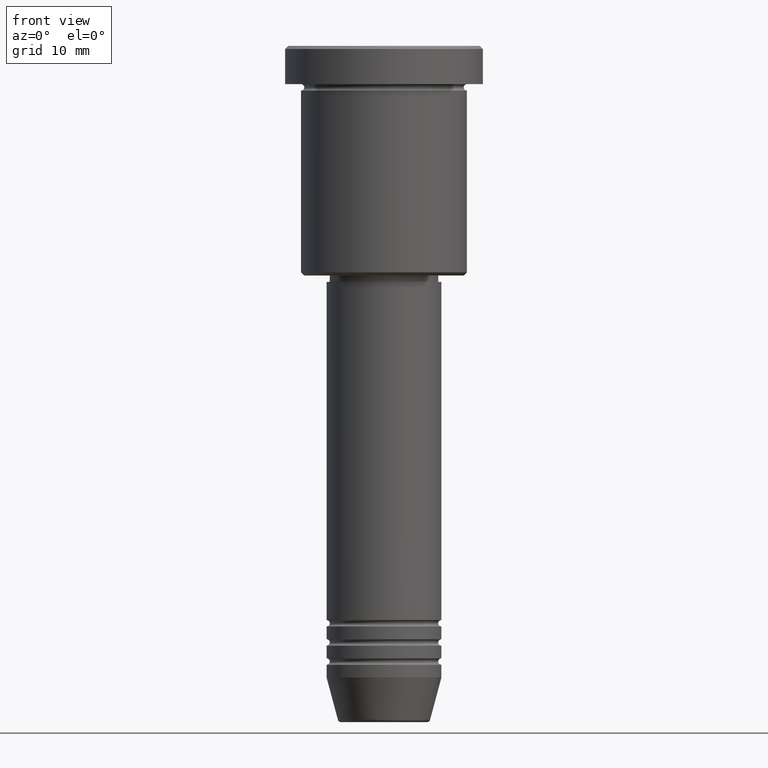
[diagram: clean part render]
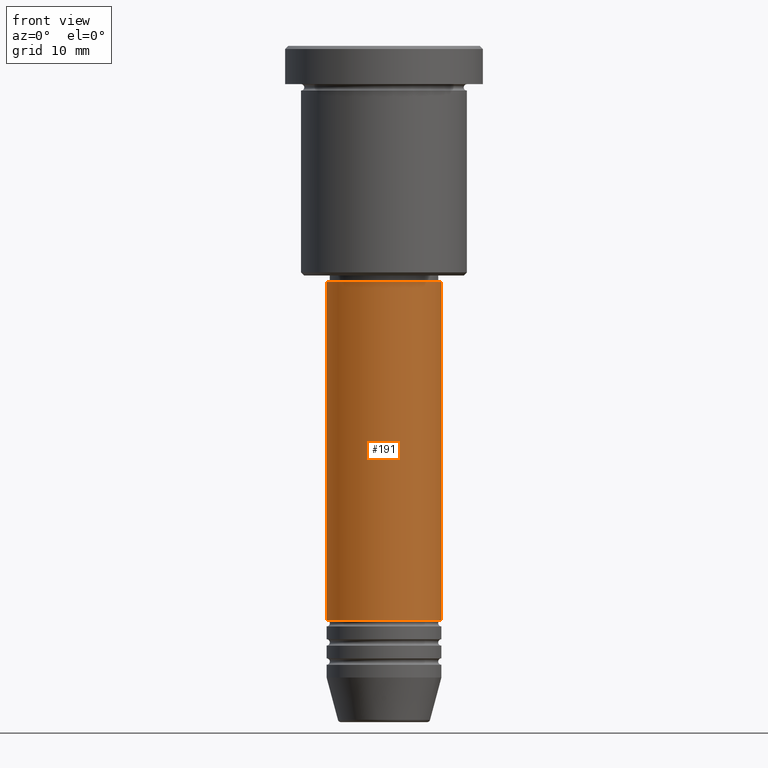
[diagram: same view with one face highlighted and labeled with its STEP entity id]
A machine part, front view. The second image highlights one B-rep face of the part: STEP entity #191.
In plain terms, the highlighted cylindrical surface (partial cylindrical patch) has radius 9 mm, axis along (-0, -0, 1).
Its self-contained STEP definition (entity closure, byte-faithful):
#85 = LINE ( 'NONE', #742, #141 ) ;
#141 = VECTOR ( 'NONE', #726, 1000.000000000000000 ) ;
#146 = CARTESIAN_POINT ( 'NONE',  ( 9.000000000000000000, 0.000000000000000000, -89.99999999999997158 ) ) ;
#191 = ADVANCED_FACE ( 'NONE', ( #346 ), #717, .T. ) ;
#256 = VECTOR ( 'NONE', #731, 1000.000000000000000 ) ;
#260 = CARTESIAN_POINT ( 'NONE',  ( 0.000000000000000000, 0.000000000000000000, 0.000000000000000000 ) ) ;
#266 = DIRECTION ( 'NONE',  ( 1.000000000000000000, 0.000000000000000000, 0.000000000000000000 ) ) ;
#277 = DIRECTION ( 'NONE',  ( -0.000000000000000000, -0.000000000000000000, 1.000000000000000000 ) ) ;
#326 = ORIENTED_EDGE ( 'NONE', *, *, #854, .F. ) ;
#331 = DIRECTION ( 'NONE',  ( -0.000000000000000000, -0.000000000000000000, 1.000000000000000000 ) ) ;
#346 = FACE_OUTER_BOUND ( 'NONE', #578, .T. ) ;
#364 = CARTESIAN_POINT ( 'NONE',  ( -9.000000000000000000, 1.102182119232617714E-15, 0.000000000000000000 ) ) ;
#380 = AXIS2_PLACEMENT_3D ( 'NONE', #704, #803, #266 ) ;
#443 = ORIENTED_EDGE ( 'NONE', *, *, #1154, .T. ) ;
#473 = ORIENTED_EDGE ( 'NONE', *, *, #781, .F. ) ;
#475 = AXIS2_PLACEMENT_3D ( 'NONE', #920, #277, #649 ) ;
#507 = CARTESIAN_POINT ( 'NONE',  ( 9.000000000000000000, 0.000000000000000000, -37.00000000000000000 ) ) ;
#539 = VERTEX_POINT ( 'NONE', #1020 ) ;
#578 = EDGE_LOOP ( 'NONE', ( #326, #707, #443, #473 ) ) ;
#600 = CIRCLE ( 'NONE', #380, 9.000000000000000000 ) ;
#649 = DIRECTION ( 'NONE',  ( 1.000000000000000000, 0.000000000000000000, 0.000000000000000000 ) ) ;
#690 = DIRECTION ( 'NONE',  ( 1.000000000000000000, 0.000000000000000000, 0.000000000000000000 ) ) ;
#704 = CARTESIAN_POINT ( 'NONE',  ( 0.000000000000000000, 0.000000000000000000, -37.00000000000000000 ) ) ;
#707 = ORIENTED_EDGE ( 'NONE', *, *, #709, .T. ) ;
#709 = EDGE_CURVE ( 'NONE', #831, #981, #1094, .T. ) ;
#717 = CYLINDRICAL_SURFACE ( 'NONE', #1115, 9.000000000000000000 ) ;
#726 = DIRECTION ( 'NONE',  ( -0.000000000000000000, -0.000000000000000000, 1.000000000000000000 ) ) ;
#731 = DIRECTION ( 'NONE',  ( -0.000000000000000000, -0.000000000000000000, 1.000000000000000000 ) ) ;
#742 = CARTESIAN_POINT ( 'NONE',  ( 9.000000000000000000, 0.000000000000000000, 0.000000000000000000 ) ) ;
#781 = EDGE_CURVE ( 'NONE', #539, #1067, #600, .T. ) ;
#803 = DIRECTION ( 'NONE',  ( -0.000000000000000000, -0.000000000000000000, 1.000000000000000000 ) ) ;
#821 = LINE ( 'NONE', #364, #256 ) ;
#831 = VERTEX_POINT ( 'NONE', #897 ) ;
#854 = EDGE_CURVE ( 'NONE', #831, #539, #821, .T. ) ;
#897 = CARTESIAN_POINT ( 'NONE',  ( -9.000000000000000000, 1.102182119232617714E-15, -89.99999999999997158 ) ) ;
#920 = CARTESIAN_POINT ( 'NONE',  ( 0.000000000000000000, 0.000000000000000000, -89.99999999999997158 ) ) ;
#981 = VERTEX_POINT ( 'NONE', #146 ) ;
#1020 = CARTESIAN_POINT ( 'NONE',  ( -9.000000000000000000, 1.102182119232617714E-15, -37.00000000000000000 ) ) ;
#1067 = VERTEX_POINT ( 'NONE', #507 ) ;
#1094 = CIRCLE ( 'NONE', #475, 9.000000000000000000 ) ;
#1115 = AXIS2_PLACEMENT_3D ( 'NONE', #260, #331, #690 ) ;
#1154 = EDGE_CURVE ( 'NONE', #981, #1067, #85, .T. ) ;